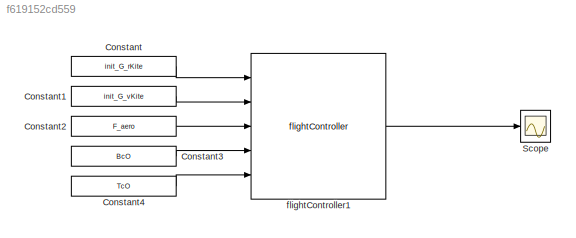
MODEL slx_f619152cd559
KIND model
CONFIG AbsTol = auto
CONFIG EnableMultiTasking = off
CONFIG FixedStep = auto
CONFIG MaxStep = auto
CONFIG MinStep = auto
CONFIG RelTol = 1e-3
CONFIG SampleTimeConstraint = Unconstrained
CONFIG Solver = VariableStepAuto
CONFIG SolverName = VariableStepAuto
CONFIG StartTime = 0.0
CONFIG StopTime = 10.0
BLOCK [Constant] Constant
  Value = init_G_rKite
BLOCK [Constant] Constant1
  Value = init_G_vKite
BLOCK [Constant] Constant2
  Value = F_aero
BLOCK [Constant] Constant3
  Value = BcO
BLOCK [Constant] Constant4
  Value = TcO
BLOCK [Scope] Scope
  Floating = off
  NumInputPorts = 1
  Ports = [1]
  ScopeSpecificationString = Simulink.scopes.TimeScopeBlockCfg('CurrentConfiguration', extmgr.ConfigurationSet(extmgr.Configuration('Core','General UI',true),extmgr.Configuration('Core','Source UI',true),extmgr.Configuration('Sources','WiredSimulink',true),extmgr.Configuration('Visuals','Time Domain',true,'SerializedDisplays',{struct('MinYLimReal','-0.15608','MaxYLimReal','1.40474','YLabelReal','','MinYLimMag','0.00000','MaxY...<+1383ch>
BLOCK [Reference] flightController1  REF=flightController_cl/flightController
  Ports = [5, 1]
  SourceBlock = flightController_cl/flightController
LINE Constant1:1 -> flightController1:2
LINE Constant2:1 -> flightController1:3
LINE Constant3:1 -> flightController1:4
LINE Constant4:1 -> flightController1:5
LINE Constant:1 -> flightController1:1
LINE flightController1:1 -> Scope:1
